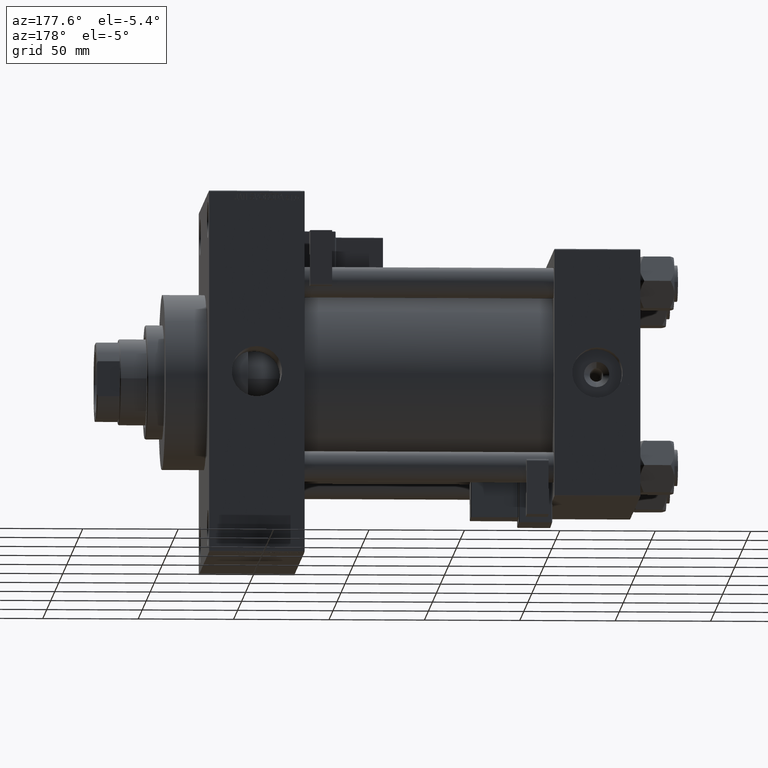
[diagram: clean part render]
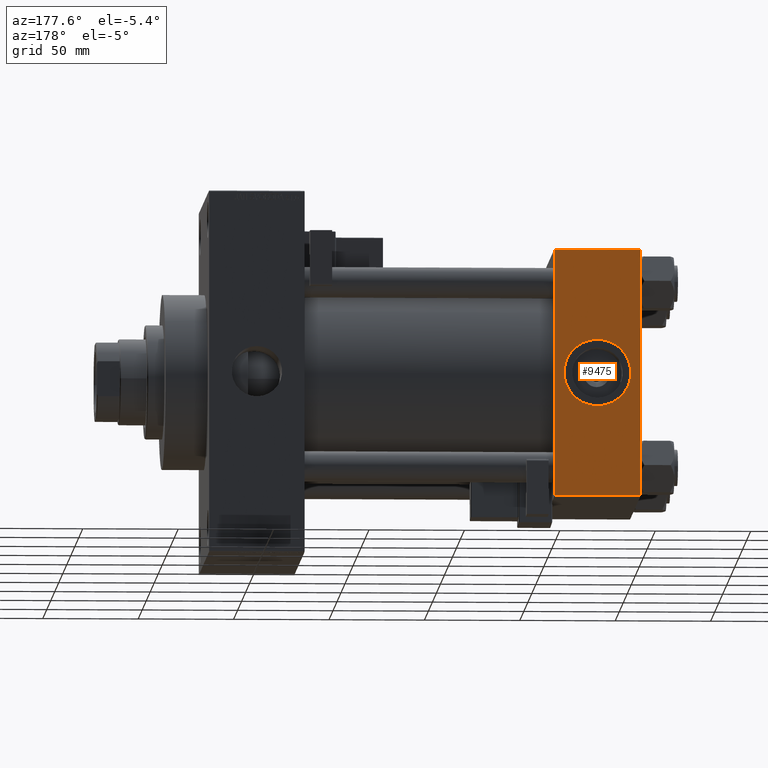
[diagram: same view with one face highlighted and labeled with its STEP entity id]
A machine part, auxiliary view. The second image highlights one B-rep face of the part: STEP entity #9475.
In plain terms, the highlighted planar face has unit normal (0, 1, 0).
Its self-contained STEP definition (entity closure, byte-faithful):
#502 = EDGE_CURVE ( 'NONE', #24339, #27688, #40307, .T. ) ;
#1178 = DIRECTION ( 'NONE',  ( 0.000000000000000000, 1.000000000000000000, 0.000000000000000000 ) ) ;
#1882 = CARTESIAN_POINT ( 'NONE',  ( 45.00000000000000000, 65.00000000000000000, -64.49999999999995737 ) ) ;
#1905 = VERTEX_POINT ( 'NONE', #1882 ) ;
#4567 = CARTESIAN_POINT ( 'NONE',  ( 0.000000000000000000, 65.00000000000000000, 65.00000000000001421 ) ) ;
#4939 = VECTOR ( 'NONE', #28465, 1000.000000000000000 ) ;
#5840 = ORIENTED_EDGE ( 'NONE', *, *, #28360, .T. ) ;
#5957 = CARTESIAN_POINT ( 'NONE',  ( 22.50000000000000000, 65.00000000000000000, 0.000000000000000000 ) ) ;
#8918 = EDGE_CURVE ( 'NONE', #24339, #43370, #51005, .T. ) ;
#9475 = ADVANCED_FACE ( 'NONE', ( #51146, #34319 ), #50622, .T. ) ;
#10297 = EDGE_CURVE ( 'NONE', #49914, #29357, #43864, .T. ) ;
#10340 = CARTESIAN_POINT ( 'NONE',  ( 0.000000000000000000, 65.00000000000000000, 64.49999999999998579 ) ) ;
#10853 = LINE ( 'NONE', #26871, #19899 ) ;
#11742 = EDGE_CURVE ( 'NONE', #29357, #49914, #47247, .T. ) ;
#12663 = CARTESIAN_POINT ( 'NONE',  ( 45.00000000000000000, 65.00000000000000000, -64.49999999999995737 ) ) ;
#13436 = LINE ( 'NONE', #12663, #43282 ) ;
#14852 = EDGE_LOOP ( 'NONE', ( #34776, #37702 ) ) ;
#15250 = DIRECTION ( 'NONE',  ( 1.000000000000000000, 0.000000000000000000, 0.000000000000000000 ) ) ;
#16374 = CARTESIAN_POINT ( 'NONE',  ( 22.50000000000000000, 65.00000000000000000, 17.50000000000000000 ) ) ;
#16804 = CARTESIAN_POINT ( 'NONE',  ( 45.00000000000000000, 65.00000000000000000, 64.49999999999998579 ) ) ;
#17069 = AXIS2_PLACEMENT_3D ( 'NONE', #19061, #31158, #35106 ) ;
#17192 = DIRECTION ( 'NONE',  ( 0.000000000000000000, 0.000000000000000000, 1.000000000000000000 ) ) ;
#17498 = DIRECTION ( 'NONE',  ( 0.000000000000000000, 1.000000000000000000, 0.000000000000000000 ) ) ;
#17552 = ORIENTED_EDGE ( 'NONE', *, *, #8918, .T. ) ;
#18672 = AXIS2_PLACEMENT_3D ( 'NONE', #37169, #1178, #17192 ) ;
#19061 = CARTESIAN_POINT ( 'NONE',  ( 45.00000000000000000, 65.00000000000000000, 65.00000000000001421 ) ) ;
#19899 = VECTOR ( 'NONE', #38969, 1000.000000000000000 ) ;
#20448 = AXIS2_PLACEMENT_3D ( 'NONE', #5957, #17498, #37480 ) ;
#22813 = EDGE_LOOP ( 'NONE', ( #5840, #26166, #28001, #17552 ) ) ;
#24339 = VERTEX_POINT ( 'NONE', #10340 ) ;
#26166 = ORIENTED_EDGE ( 'NONE', *, *, #42290, .T. ) ;
#26871 = CARTESIAN_POINT ( 'NONE',  ( 45.00000000000000000, 65.00000000000000000, 65.00000000000001421 ) ) ;
#27688 = VERTEX_POINT ( 'NONE', #45210 ) ;
#28001 = ORIENTED_EDGE ( 'NONE', *, *, #502, .F. ) ;
#28360 = EDGE_CURVE ( 'NONE', #43370, #1905, #10853, .T. ) ;
#28465 = DIRECTION ( 'NONE',  ( 0.000000000000000000, 0.000000000000000000, -1.000000000000000000 ) ) ;
#28677 = DIRECTION ( 'NONE',  ( -1.000000000000000000, 0.000000000000000000, 0.000000000000000000 ) ) ;
#29357 = VERTEX_POINT ( 'NONE', #33919 ) ;
#31158 = DIRECTION ( 'NONE',  ( -0.000000000000000000, 1.000000000000000000, 0.000000000000000000 ) ) ;
#33919 = CARTESIAN_POINT ( 'NONE',  ( 22.50000000000000355, 65.00000000000000000, -17.50000000000000000 ) ) ;
#34319 = FACE_OUTER_BOUND ( 'NONE', #22813, .T. ) ;
#34776 = ORIENTED_EDGE ( 'NONE', *, *, #10297, .F. ) ;
#35106 = DIRECTION ( 'NONE',  ( 0.000000000000000000, -0.000000000000000000, 1.000000000000000000 ) ) ;
#37169 = CARTESIAN_POINT ( 'NONE',  ( 22.50000000000000000, 65.00000000000000000, 0.000000000000000000 ) ) ;
#37480 = DIRECTION ( 'NONE',  ( 0.000000000000000000, 0.000000000000000000, 1.000000000000000000 ) ) ;
#37702 = ORIENTED_EDGE ( 'NONE', *, *, #11742, .F. ) ;
#38969 = DIRECTION ( 'NONE',  ( 0.000000000000000000, 0.000000000000000000, -1.000000000000000000 ) ) ;
#40307 = LINE ( 'NONE', #4567, #4939 ) ;
#42290 = EDGE_CURVE ( 'NONE', #1905, #27688, #13436, .T. ) ;
#42587 = CARTESIAN_POINT ( 'NONE',  ( 45.00000000000000000, 65.00000000000000000, 64.49999999999998579 ) ) ;
#43282 = VECTOR ( 'NONE', #28677, 1000.000000000000000 ) ;
#43370 = VERTEX_POINT ( 'NONE', #16804 ) ;
#43864 = CIRCLE ( 'NONE', #20448, 17.50000000000000000 ) ;
#44726 = VECTOR ( 'NONE', #15250, 1000.000000000000000 ) ;
#45210 = CARTESIAN_POINT ( 'NONE',  ( 0.000000000000000000, 65.00000000000000000, -64.49999999999995737 ) ) ;
#47247 = CIRCLE ( 'NONE', #18672, 17.50000000000000000 ) ;
#49914 = VERTEX_POINT ( 'NONE', #16374 ) ;
#50622 = PLANE ( 'NONE',  #17069 ) ;
#51005 = LINE ( 'NONE', #42587, #44726 ) ;
#51146 = FACE_BOUND ( 'NONE', #14852, .T. ) ;